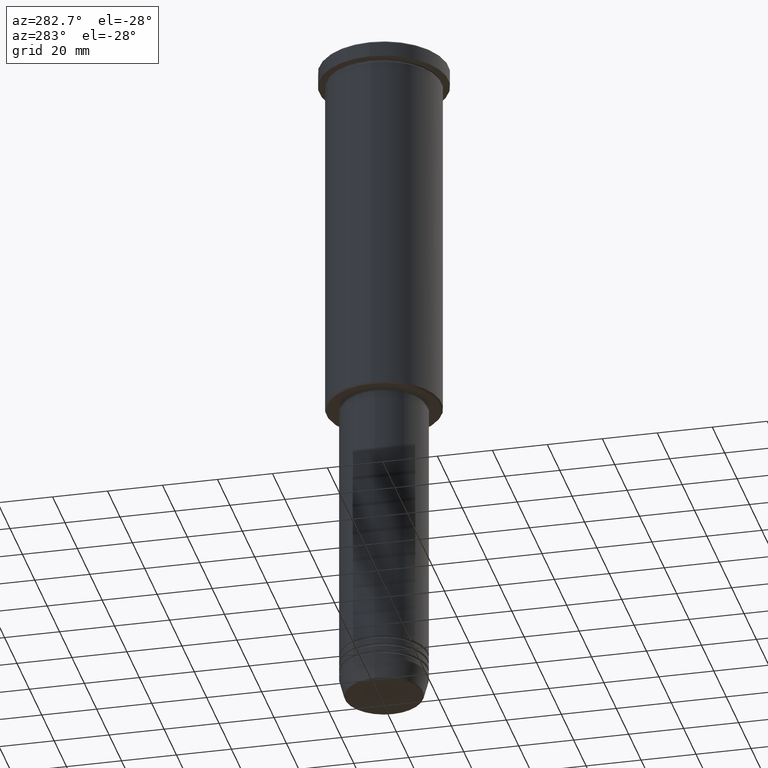
[diagram: clean part render]
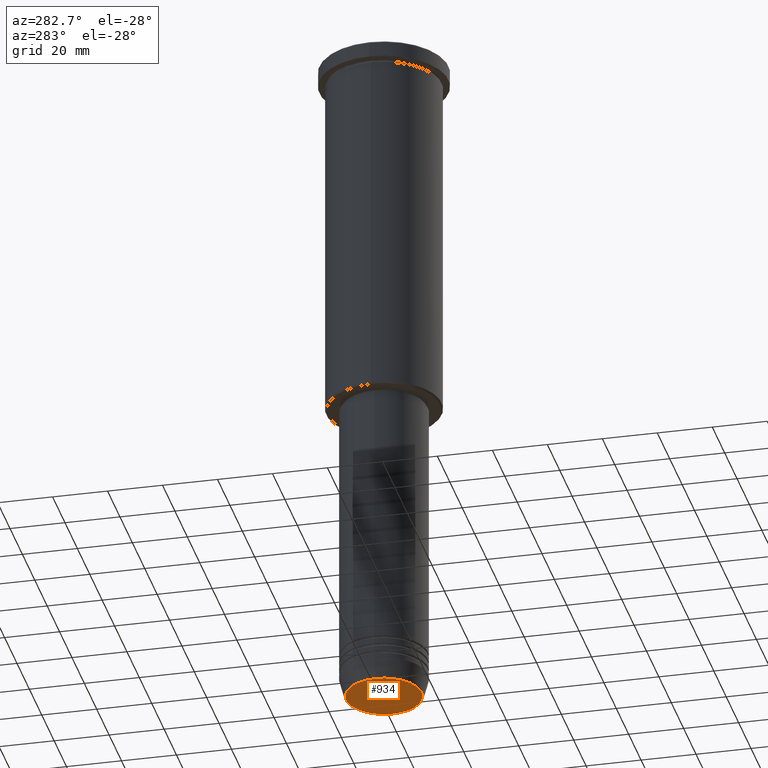
[diagram: same view with one face highlighted and labeled with its STEP entity id]
A machine part, auxiliary view. The second image highlights one B-rep face of the part: STEP entity #934.
In plain terms, the highlighted planar face has unit normal (0, -0, 1).
Its self-contained STEP definition (entity closure, byte-faithful):
#37 = AXIS2_PLACEMENT_3D ( 'NONE', #1151, #882, #785 ) ;
#62 = EDGE_CURVE ( 'NONE', #1080, #517, #227, .T. ) ;
#166 = CIRCLE ( 'NONE', #550, 13.74069215899266538 ) ;
#179 = CARTESIAN_POINT ( 'NONE',  ( -13.74069215899266538, 1.712322416342416972E-15, -251.0000000000000000 ) ) ;
#181 = DIRECTION ( 'NONE',  ( 0.000000000000000000, 0.000000000000000000, -1.000000000000000000 ) ) ;
#227 = CIRCLE ( 'NONE', #1157, 13.74069215899266538 ) ;
#421 = EDGE_CURVE ( 'NONE', #517, #1080, #166, .T. ) ;
#500 = ORIENTED_EDGE ( 'NONE', *, *, #421, .T. ) ;
#517 = VERTEX_POINT ( 'NONE', #179 ) ;
#550 = AXIS2_PLACEMENT_3D ( 'NONE', #600, #871, #1148 ) ;
#600 = CARTESIAN_POINT ( 'NONE',  ( 0.000000000000000000, 0.000000000000000000, -251.0000000000000000 ) ) ;
#618 = FACE_OUTER_BOUND ( 'NONE', #818, .T. ) ;
#765 = ORIENTED_EDGE ( 'NONE', *, *, #62, .T. ) ;
#785 = DIRECTION ( 'NONE',  ( 1.000000000000000000, 0.000000000000000000, 0.000000000000000000 ) ) ;
#796 = PLANE ( 'NONE',  #37 ) ;
#818 = EDGE_LOOP ( 'NONE', ( #765, #500 ) ) ;
#820 = CARTESIAN_POINT ( 'NONE',  ( 13.74069215899266538, 0.000000000000000000, -251.0000000000000000 ) ) ;
#871 = DIRECTION ( 'NONE',  ( 0.000000000000000000, 0.000000000000000000, -1.000000000000000000 ) ) ;
#882 = DIRECTION ( 'NONE',  ( 0.000000000000000000, -0.000000000000000000, 1.000000000000000000 ) ) ;
#905 = DIRECTION ( 'NONE',  ( 1.000000000000000000, 0.000000000000000000, 0.000000000000000000 ) ) ;
#934 = ADVANCED_FACE ( 'NONE', ( #618 ), #796, .F. ) ;
#995 = CARTESIAN_POINT ( 'NONE',  ( 0.000000000000000000, 0.000000000000000000, -251.0000000000000000 ) ) ;
#1080 = VERTEX_POINT ( 'NONE', #820 ) ;
#1148 = DIRECTION ( 'NONE',  ( 1.000000000000000000, 0.000000000000000000, 0.000000000000000000 ) ) ;
#1151 = CARTESIAN_POINT ( 'NONE',  ( 0.000000000000000000, 0.000000000000000000, -251.0000000000000000 ) ) ;
#1157 = AXIS2_PLACEMENT_3D ( 'NONE', #995, #181, #905 ) ;